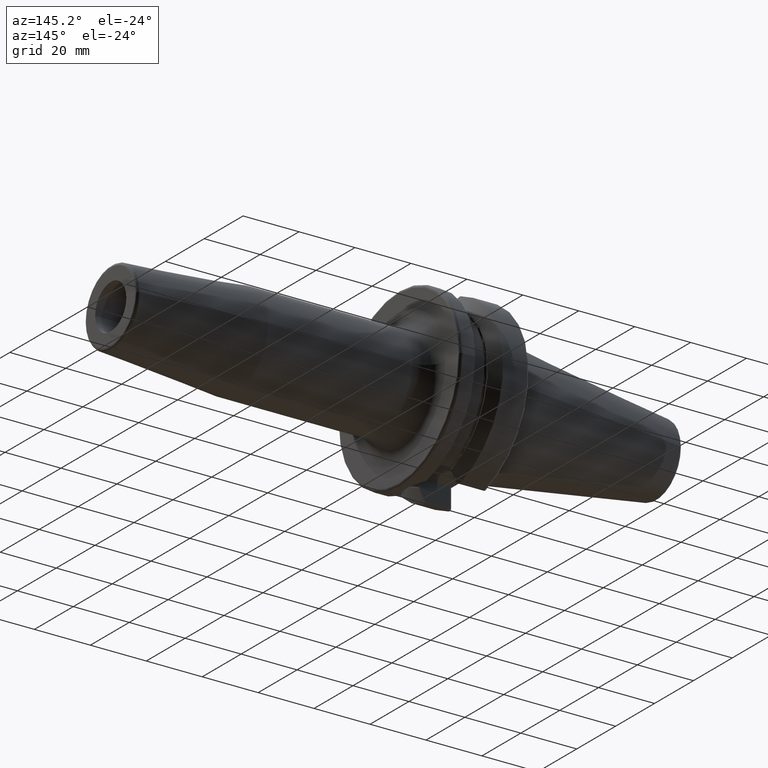
[diagram: clean part render]
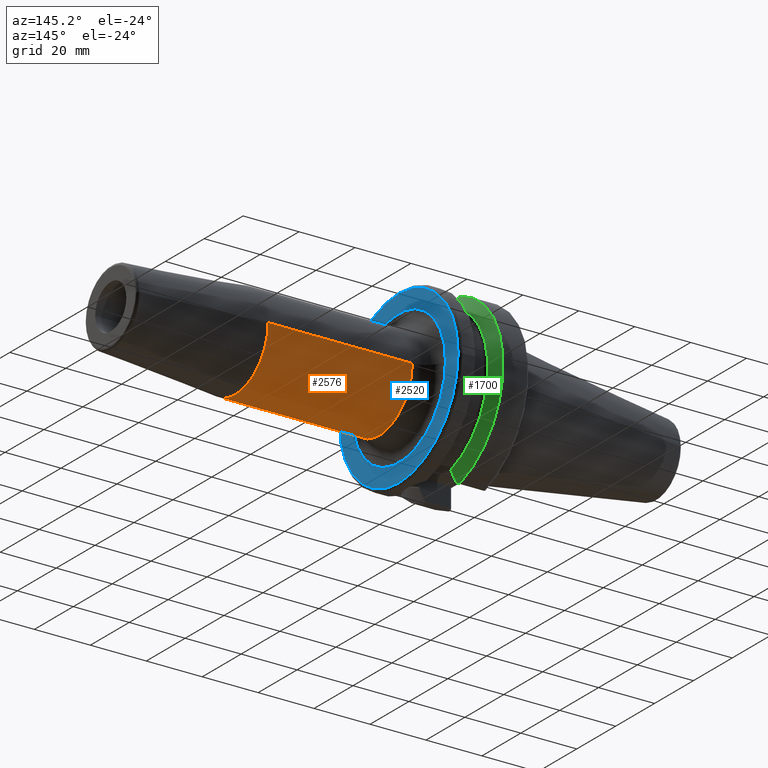
[diagram: same view with three faces highlighted in distinct colors, each labeled with its STEP entity id]
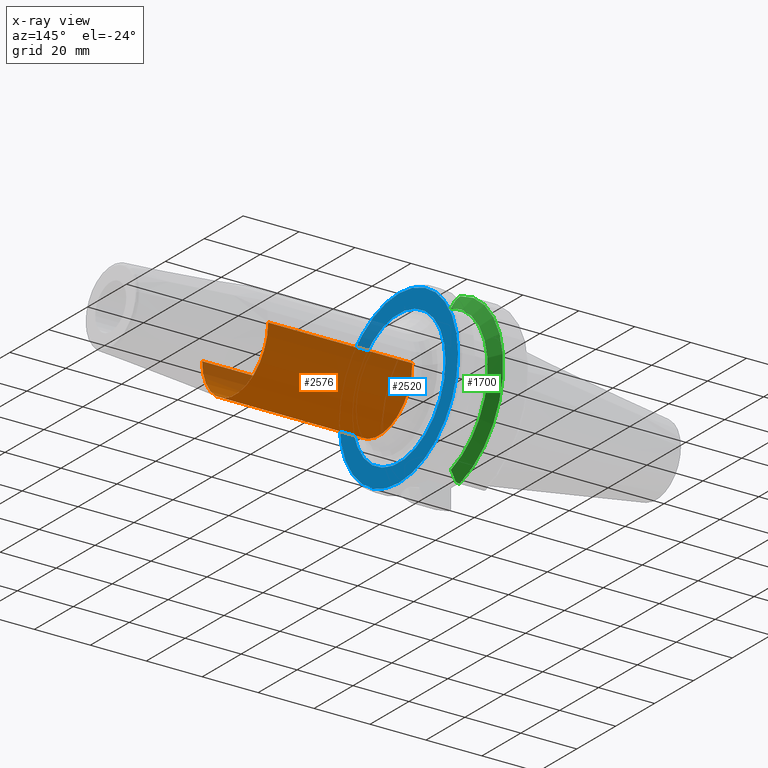
[diagram: x-ray of the same camera — body ghosted, the three highlighted faces saturated]
A machine part, auxiliary view with three faces highlighted in distinct colors.
The next image is the same camera in x-ray (body ghosted, the three faces saturated) — at least one of them is partly hidden behind the body in this view.
Their STEP definitions:

[orange] entity #2576 — the highlighted cylindrical surface (partial cylindrical patch) has radius 17 mm, axis along (1, 0, 0).
#866=CARTESIAN_POINT('',(3.4E1,0.E0,0.E0));
#867=DIRECTION('',(1.E0,0.E0,0.E0));
#868=DIRECTION('',(0.E0,-1.E0,0.E0));
#869=AXIS2_PLACEMENT_3D('',#866,#867,#868);
#871=DIRECTION('',(-1.E0,0.E0,-2.869926672497E-14));
#872=VECTOR('',#871,5.152828342339E1);
#873=CARTESIAN_POINT('',(8.552828342339E1,-1.7E1,0.E0));
#874=LINE('',#873,#872);
#875=CARTESIAN_POINT('',(8.552828342339E1,0.E0,0.E0));
#876=DIRECTION('',(-1.E0,0.E0,0.E0));
#877=DIRECTION('',(0.E0,1.E0,0.E0));
#878=AXIS2_PLACEMENT_3D('',#875,#876,#877);
#880=DIRECTION('',(-1.E0,0.E0,2.865240327902E-14));
#881=VECTOR('',#880,5.152828342339E1);
#882=CARTESIAN_POINT('',(8.552828342339E1,1.7E1,0.E0));
#883=LINE('',#882,#881);
#1405=CARTESIAN_POINT('',(3.4E1,-1.7E1,0.E0));
#1406=CARTESIAN_POINT('',(3.4E1,1.7E1,0.E0));
#1407=VERTEX_POINT('',#1405);
#1408=VERTEX_POINT('',#1406);
#1409=CARTESIAN_POINT('',(8.552828342339E1,1.7E1,0.E0));
#1410=VERTEX_POINT('',#1409);
#1411=CARTESIAN_POINT('',(8.552828342339E1,-1.7E1,0.E0));
#1412=VERTEX_POINT('',#1411);
#2564=CARTESIAN_POINT('',(2.185E1,0.E0,0.E0));
#2565=DIRECTION('',(1.E0,0.E0,0.E0));
#2566=DIRECTION('',(0.E0,-1.E0,0.E0));
#2567=AXIS2_PLACEMENT_3D('',#2564,#2565,#2566);
#2568=CYLINDRICAL_SURFACE('',#2567,1.7E1);
#2569=ORIENTED_EDGE('',*,*,#2529,.F.);
#2570=ORIENTED_EDGE('',*,*,#2559,.F.);
#2572=ORIENTED_EDGE('',*,*,#2571,.F.);
#2573=ORIENTED_EDGE('',*,*,#2555,.T.);
#2574=EDGE_LOOP('',(#2569,#2570,#2572,#2573));
#2575=FACE_OUTER_BOUND('',#2574,.F.);
#2576=ADVANCED_FACE('',(#2575),#2568,.T.);
#870=CIRCLE('',#869,1.7E1);
#879=CIRCLE('',#878,1.7E1);
#2529=EDGE_CURVE('',#1407,#1408,#870,.T.);
#2555=EDGE_CURVE('',#1410,#1408,#883,.T.);
#2559=EDGE_CURVE('',#1412,#1407,#874,.T.);
#2571=EDGE_CURVE('',#1410,#1412,#879,.T.);

[blue] entity #2520 — the highlighted planar face has unit normal (1, 0, 0).
#816=CARTESIAN_POINT('',(2.7E1,0.E0,0.E0));
#817=DIRECTION('',(1.E0,0.E0,0.E0));
#818=DIRECTION('',(0.E0,1.E0,0.E0));
#819=AXIS2_PLACEMENT_3D('',#816,#817,#818);
#831=CARTESIAN_POINT('',(2.7E1,0.E0,0.E0));
#832=DIRECTION('',(-1.E0,0.E0,0.E0));
#833=DIRECTION('',(0.E0,1.E0,0.E0));
#834=AXIS2_PLACEMENT_3D('',#831,#832,#833);
#836=CARTESIAN_POINT('',(2.7E1,0.E0,0.E0));
#837=DIRECTION('',(1.E0,0.E0,0.E0));
#838=DIRECTION('',(0.E0,-1.E0,0.E0));
#839=AXIS2_PLACEMENT_3D('',#836,#837,#838);
#841=CARTESIAN_POINT('',(2.7E1,0.E0,0.E0));
#842=DIRECTION('',(1.E0,0.E0,0.E0));
#843=DIRECTION('',(0.E0,1.E0,0.E0));
#844=AXIS2_PLACEMENT_3D('',#841,#842,#843);
#1304=CARTESIAN_POINT('',(2.7E1,3.04875E1,0.E0));
#1305=VERTEX_POINT('',#1304);
#1306=CARTESIAN_POINT('',(2.7E1,-3.04875E1,0.E0));
#1307=VERTEX_POINT('',#1306);
#1401=CARTESIAN_POINT('',(2.7E1,-2.4E1,0.E0));
#1402=CARTESIAN_POINT('',(2.7E1,2.4E1,0.E0));
#1403=VERTEX_POINT('',#1401);
#1404=VERTEX_POINT('',#1402);
#2505=CARTESIAN_POINT('',(2.7E1,0.E0,0.E0));
#2506=DIRECTION('',(1.E0,0.E0,0.E0));
#2507=DIRECTION('',(0.E0,-1.E0,0.E0));
#2508=AXIS2_PLACEMENT_3D('',#2505,#2506,#2507);
#2509=PLANE('',#2508);
#2510=ORIENTED_EDGE('',*,*,#2500,.T.);
#2511=ORIENTED_EDGE('',*,*,#2484,.F.);
#2512=EDGE_LOOP('',(#2510,#2511));
#2513=FACE_OUTER_BOUND('',#2512,.F.);
#2515=ORIENTED_EDGE('',*,*,#2514,.T.);
#2517=ORIENTED_EDGE('',*,*,#2516,.T.);
#2518=EDGE_LOOP('',(#2515,#2517));
#2519=FACE_BOUND('',#2518,.F.);
#2520=ADVANCED_FACE('',(#2513,#2519),#2509,.T.);
#820=CIRCLE('',#819,3.04875E1);
#835=CIRCLE('',#834,3.04875E1);
#840=CIRCLE('',#839,2.4E1);
#845=CIRCLE('',#844,2.4E1);
#2484=EDGE_CURVE('',#1305,#1307,#820,.T.);
#2500=EDGE_CURVE('',#1305,#1307,#835,.T.);
#2514=EDGE_CURVE('',#1403,#1404,#840,.T.);
#2516=EDGE_CURVE('',#1404,#1403,#845,.T.);

[green] entity #1700 — the highlighted conical surface has half-angle 60 deg.
#155=CARTESIAN_POINT('',(1.212089730171E1,8.095E0,-2.944558475789E1));
#156=CARTESIAN_POINT('',(1.234623272522E1,8.095E0,-2.904081227564E1));
#157=CARTESIAN_POINT('',(1.279052069613E1,8.095E0,-2.824155997645E1));
#158=CARTESIAN_POINT('',(1.343761208926E1,8.095E0,-2.707376738597E1));
#159=CARTESIAN_POINT('',(1.385633764716E1,8.095E0,-2.631545873157E1));
#160=CARTESIAN_POINT('',(1.40625E1,8.095E0,-2.594139336151E1));
#200=CARTESIAN_POINT('',(1.40625E1,0.E0,0.E0));
#201=DIRECTION('',(1.E0,0.E0,0.E0));
#202=DIRECTION('',(0.E0,2.978832194960E-1,-9.546023190537E-1));
#203=AXIS2_PLACEMENT_3D('',#200,#201,#202);
#237=CARTESIAN_POINT('',(1.157272253103E1,0.E0,0.E0));
#238=DIRECTION('',(1.E0,0.E0,0.E0));
#239=DIRECTION('',(0.E0,2.875039130802E-1,-9.577794631143E-1));
#240=AXIS2_PLACEMENT_3D('',#237,#238,#239);
#622=CARTESIAN_POINT('',(1.212089730171E1,8.095E0,-2.944558475789E1));
#623=CARTESIAN_POINT('',(1.203210735485E1,8.251548423090E0,-2.956204177452E1));
#624=CARTESIAN_POINT('',(1.185196062668E1,8.567728822292E0,-2.979724967558E1));
#625=CARTESIAN_POINT('',(1.166666286204E1,8.890070036919E0,-3.003704063260E1));
#626=CARTESIAN_POINT('',(1.157272253103E1,9.052779463114E0,-3.015808084481E1));
#632=CARTESIAN_POINT('',(1.157272253103E1,9.393318983190E0,3.005375541808E1));
#633=CARTESIAN_POINT('',(1.170089151867E1,9.171323784651E0,2.989055444592E1));
#634=CARTESIAN_POINT('',(1.195252831620E1,8.732937755222E0,2.956827258282E1));
#635=CARTESIAN_POINT('',(1.219479613906E1,8.305773148711E0,2.925424020953E1));
#636=CARTESIAN_POINT('',(1.231359829731E1,8.095E0,2.909928918805E1));
#673=CARTESIAN_POINT('',(1.40625E1,8.095E0,2.594139336151E1));
#674=CARTESIAN_POINT('',(1.387619304722E1,8.095E0,2.627943267022E1));
#675=CARTESIAN_POINT('',(1.349822147379E1,8.095E0,2.696405968402E1));
#676=CARTESIAN_POINT('',(1.291532431893E1,8.095E0,2.801651320770E1));
#677=CARTESIAN_POINT('',(1.251595456147E1,8.095E0,2.873548878206E1));
#678=CARTESIAN_POINT('',(1.231359829731E1,8.095E0,2.909928918805E1));
#1218=CARTESIAN_POINT('',(1.40625E1,8.095E0,-2.594139336151E1));
#1219=CARTESIAN_POINT('',(1.40625E1,8.095E0,2.594139336151E1));
#1220=VERTEX_POINT('',#1218);
#1221=VERTEX_POINT('',#1219);
#1326=VERTEX_POINT('',#678);
#1334=VERTEX_POINT('',#155);
#1344=CARTESIAN_POINT('',(1.157272253103E1,9.052779463114E0,-3.015808084481E1));
#1345=CARTESIAN_POINT('',(1.157272253103E1,9.393318983190E0,3.005375541808E1));
#1346=VERTEX_POINT('',#1344);
#1347=VERTEX_POINT('',#1345);
#1683=CARTESIAN_POINT('',(1.281761126552E1,0.E0,0.E0));
#1684=DIRECTION('',(-1.E0,0.E0,0.E0));
#1685=DIRECTION('',(0.E0,1.E0,0.E0));
#1686=AXIS2_PLACEMENT_3D('',#1683,#1684,#1685);
#1687=CONICAL_SURFACE('',#1686,2.933128946210E1,6.E1);
#1689=ORIENTED_EDGE('',*,*,#1688,.F.);
#1691=ORIENTED_EDGE('',*,*,#1690,.F.);
#1692=ORIENTED_EDGE('',*,*,#1634,.T.);
#1693=ORIENTED_EDGE('',*,*,#1657,.T.);
#1695=ORIENTED_EDGE('',*,*,#1694,.T.);
#1697=ORIENTED_EDGE('',*,*,#1696,.F.);
#1698=EDGE_LOOP('',(#1689,#1691,#1692,#1693,#1695,#1697));
#1699=FACE_OUTER_BOUND('',#1698,.F.);
#1700=ADVANCED_FACE('',(#1699),#1687,.T.);
#161=B_SPLINE_CURVE_WITH_KNOTS('',3,(#155,#156,#157,#158,#159,#160),
.UNSPECIFIED.,.F.,.F.,(4,1,1,4),(0.E0,3.333333333333E-1,6.666666666667E-1,1.E0),
.UNSPECIFIED.);
#204=CIRCLE('',#203,2.717507892421E1);
#241=CIRCLE('',#240,3.14875E1);
#627=B_SPLINE_CURVE_WITH_KNOTS('',3,(#622,#623,#624,#625,#626),.UNSPECIFIED.,
.F.,.F.,(4,1,4),(0.E0,5.E-1,1.E0),.UNSPECIFIED.);
#637=B_SPLINE_CURVE_WITH_KNOTS('',3,(#632,#633,#634,#635,#636),.UNSPECIFIED.,
.F.,.F.,(4,1,4),(0.E0,5.E-1,1.E0),.UNSPECIFIED.);
#679=B_SPLINE_CURVE_WITH_KNOTS('',3,(#673,#674,#675,#676,#677,#678),
.UNSPECIFIED.,.F.,.F.,(4,1,1,4),(0.E0,3.333333333333E-1,6.666666666667E-1,1.E0),
.UNSPECIFIED.);
#1634=EDGE_CURVE('',#1334,#1220,#161,.T.);
#1657=EDGE_CURVE('',#1220,#1221,#204,.T.);
#1688=EDGE_CURVE('',#1346,#1347,#241,.T.);
#1690=EDGE_CURVE('',#1334,#1346,#627,.T.);
#1694=EDGE_CURVE('',#1221,#1326,#679,.T.);
#1696=EDGE_CURVE('',#1347,#1326,#637,.T.);